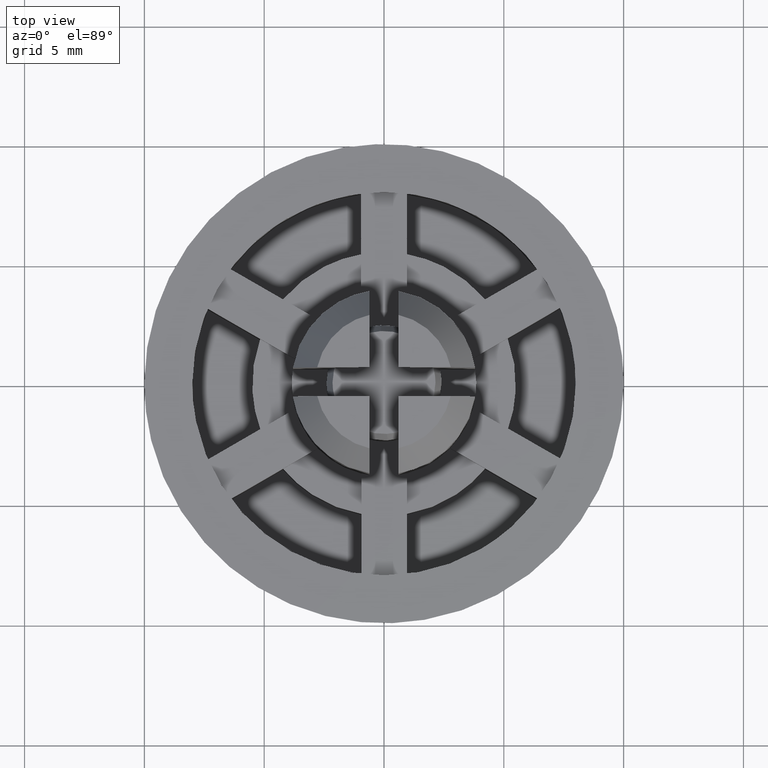
[diagram: clean part render]
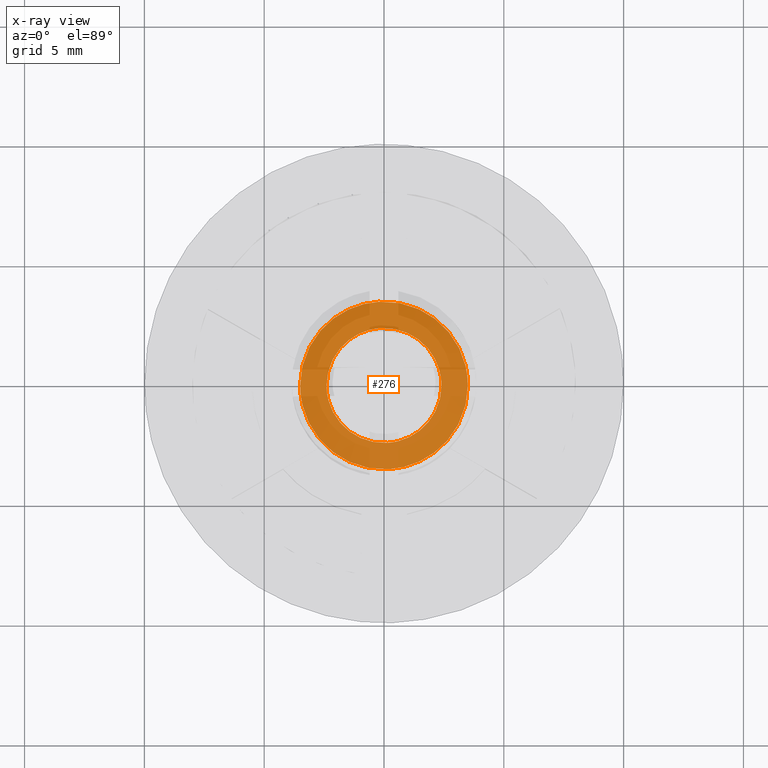
[diagram: x-ray — body ghosted, one internal face saturated and labeled with its STEP entity id]
A machine part, top view, then the same camera in x-ray: the body is ghosted and one INTERNAL B-rep face — a face not visible from any outside direction — is saturated and labeled: STEP entity #276.
In plain terms, the highlighted face is a freeform B-spline surface patch.
Its self-contained STEP definition (entity closure, byte-faithful):
#96=CARTESIAN_POINT('',(-0.213669888386887,3.493471794475623,-4.500020999999910));
#97=VERTEX_POINT('',#96);
#103=CARTESIAN_POINT('',(3.500000000000000,-3.612576E-016,-4.500020999999910));
#104=VERTEX_POINT('',#103);
#105=CARTESIAN_POINT('',(-0.213669888386888,3.493471794475624,-4.500020999999910));
#106=CARTESIAN_POINT('',(-0.106934671552526,3.499999999999999,-4.500020999999911));
#107=CARTESIAN_POINT('',(0.0,3.500000000000000,-4.500020999999910));
#108=CARTESIAN_POINT('',(3.500000000000000,3.500000000000000,-4.500020999999909));
#109=CARTESIAN_POINT('',(3.500000000000000,-3.612576E-016,-4.500020999999910));
#117=(BOUNDED_CURVE()B_SPLINE_CURVE(2,(#105,#106,#107,#108,#109),.UNSPECIFIED.,.F.,.U.)B_SPLINE_CURVE_WITH_KNOTS((3,2,3),(0.239332962241233,0.250000000000000,0.500000000000000),.UNSPECIFIED.)CURVE()GEOMETRIC_REPRESENTATION_ITEM()RATIONAL_B_SPLINE_CURVE((0.976072041671626,0.987502787902520,1.0,0.707106781186547,1.0))REPRESENTATION_ITEM(''));
#118=EDGE_CURVE('',#97,#104,#117,.T.);
#120=CARTESIAN_POINT('',(0.213669888386887,-3.493471794475624,-4.500020999999910));
#121=VERTEX_POINT('',#120);
#122=CARTESIAN_POINT('',(3.500000000000000,-3.612576E-016,-4.500020999999910));
#123=CARTESIAN_POINT('',(3.500000000000000,-3.292471234155875,-4.500020999999910));
#124=CARTESIAN_POINT('',(0.213669888386888,-3.493471794475624,-4.500020999999909));
#132=(BOUNDED_CURVE()B_SPLINE_CURVE(2,(#122,#123,#124),.UNSPECIFIED.,.F.,.U.)B_SPLINE_CURVE_WITH_KNOTS((3,3),(0.500000000000000,0.739332962241233),.UNSPECIFIED.)CURVE()GEOMETRIC_REPRESENTATION_ITEM()RATIONAL_B_SPLINE_CURVE((1.0,0.719603993284027,0.976072041671626))REPRESENTATION_ITEM(''));
#133=EDGE_CURVE('',#104,#121,#132,.T.);
#165=CARTESIAN_POINT('',(-3.500000000000000,-3.612576E-016,-4.500020999999910));
#166=VERTEX_POINT('',#165);
#167=CARTESIAN_POINT('',(0.213669888386888,-3.493471794475624,-4.500020999999909));
#168=CARTESIAN_POINT('',(0.106934671552527,-3.500000000000000,-4.500020999999909));
#169=CARTESIAN_POINT('',(0.0,-3.500000000000000,-4.500020999999910));
#170=CARTESIAN_POINT('',(-3.500000000000000,-3.500000000000001,-4.500020999999909));
#171=CARTESIAN_POINT('',(-3.500000000000000,-3.612576E-016,-4.500020999999910));
#179=(BOUNDED_CURVE()B_SPLINE_CURVE(2,(#167,#168,#169,#170,#171),.UNSPECIFIED.,.F.,.U.)B_SPLINE_CURVE_WITH_KNOTS((3,2,3),(0.739332962241233,0.750000000000000,1.0),.UNSPECIFIED.)CURVE()GEOMETRIC_REPRESENTATION_ITEM()RATIONAL_B_SPLINE_CURVE((0.976072041671626,0.987502787902520,1.0,0.707106781186547,1.0))REPRESENTATION_ITEM(''));
#180=EDGE_CURVE('',#121,#166,#179,.T.);
#182=CARTESIAN_POINT('',(-3.500000000000000,-3.612576E-016,-4.500020999999910));
#183=CARTESIAN_POINT('',(-3.500000000000000,3.292471234155874,-4.500020999999910));
#184=CARTESIAN_POINT('',(-0.213669888386888,3.493471794475624,-4.500020999999910));
#192=(BOUNDED_CURVE()B_SPLINE_CURVE(2,(#182,#183,#184),.UNSPECIFIED.,.F.,.U.)B_SPLINE_CURVE_WITH_KNOTS((3,3),(0.0,0.239332962241233),.UNSPECIFIED.)CURVE()GEOMETRIC_REPRESENTATION_ITEM()RATIONAL_B_SPLINE_CURVE((1.0,0.719603993284027,0.976072041671626))REPRESENTATION_ITEM(''));
#193=EDGE_CURVE('',#166,#97,#192,.T.);
#199=CARTESIAN_POINT('',(3.849649986432642,-3.849563855582168,-4.500020999999910));
#200=CARTESIAN_POINT('',(-3.849650174187272,-3.849563855582168,-4.500020999999910));
#201=CARTESIAN_POINT('',(3.849649986432642,3.849563730412414,-4.500020999999910));
#202=CARTESIAN_POINT('',(-3.849650174187273,3.849563730412414,-4.500020999999910));
#203=B_SPLINE_SURFACE_WITH_KNOTS('',1,1,((#199,#201),(#200,#202)),.UNSPECIFIED.,.F.,.F.,.U.,(2,2),(2,2),(0.0,7.699300160619915),(0.0,7.699127585994583),.UNSPECIFIED.);
#204=ORIENTED_EDGE('',*,*,#180,.F.);
#205=ORIENTED_EDGE('',*,*,#133,.F.);
#206=ORIENTED_EDGE('',*,*,#118,.F.);
#207=ORIENTED_EDGE('',*,*,#193,.F.);
#208=EDGE_LOOP('',(#204,#205,#206,#207));
#209=FACE_OUTER_BOUND('',#208,.T.);
#210=CARTESIAN_POINT('',(2.400000000000000,-3.612576E-016,-4.500020999999910));
#211=VERTEX_POINT('',#210);
#212=CARTESIAN_POINT('',(0.146516494908146,-2.395523516210983,-4.500020999999910));
#213=VERTEX_POINT('',#212);
#214=CARTESIAN_POINT('',(2.400000000000000,-3.612576E-016,-4.500020999999910));
#215=CARTESIAN_POINT('',(2.400000000000000,-2.257694560550546,-4.500020999999910));
#216=CARTESIAN_POINT('',(0.146516494908145,-2.395523516210984,-4.500020999999910));
#224=(BOUNDED_CURVE()B_SPLINE_CURVE(2,(#214,#215,#216),.UNSPECIFIED.,.F.,.U.)B_SPLINE_CURVE_WITH_KNOTS((3,3),(0.500000000000000,0.739332962240204),.UNSPECIFIED.)CURVE()GEOMETRIC_REPRESENTATION_ITEM()RATIONAL_B_SPLINE_CURVE((1.0,0.719603993285232,0.976072041669421))REPRESENTATION_ITEM(''));
#225=EDGE_CURVE('',#211,#213,#224,.T.);
#226=ORIENTED_EDGE('',*,*,#225,.T.);
#227=CARTESIAN_POINT('',(-2.400000000000000,-3.612576E-016,-4.500020999999910));
#228=VERTEX_POINT('',#227);
#229=CARTESIAN_POINT('',(0.146516494908145,-2.395523516210984,-4.500020999999910));
#230=CARTESIAN_POINT('',(0.073326631928892,-2.400000000000000,-4.500020999999910));
#231=CARTESIAN_POINT('',(0.0,-2.400000000000000,-4.500020999999910));
#232=CARTESIAN_POINT('',(-2.400000000000000,-2.400000000000000,-4.500020999999909));
#233=CARTESIAN_POINT('',(-2.400000000000000,-3.612576E-016,-4.500020999999910));
#241=(BOUNDED_CURVE()B_SPLINE_CURVE(2,(#229,#230,#231,#232,#233),.UNSPECIFIED.,.F.,.U.)B_SPLINE_CURVE_WITH_KNOTS((3,2,3),(0.739332962240204,0.750000000000000,1.0),.UNSPECIFIED.)CURVE()GEOMETRIC_REPRESENTATION_ITEM()RATIONAL_B_SPLINE_CURVE((0.976072041669421,0.987502787901315,1.0,0.707106781186547,1.0))REPRESENTATION_ITEM(''));
#242=EDGE_CURVE('',#213,#228,#241,.T.);
#243=ORIENTED_EDGE('',*,*,#242,.T.);
#244=CARTESIAN_POINT('',(-0.146516494908146,2.395523516210982,-4.500020999999910));
#245=VERTEX_POINT('',#244);
#246=CARTESIAN_POINT('',(-2.400000000000000,-3.612576E-016,-4.500020999999910));
#247=CARTESIAN_POINT('',(-2.400000000000000,2.257694560550544,-4.500020999999909));
#248=CARTESIAN_POINT('',(-0.146516494908146,2.395523516210982,-4.500020999999911));
#256=(BOUNDED_CURVE()B_SPLINE_CURVE(2,(#246,#247,#248),.UNSPECIFIED.,.F.,.U.)B_SPLINE_CURVE_WITH_KNOTS((3,3),(0.0,0.239332962240204),.UNSPECIFIED.)CURVE()GEOMETRIC_REPRESENTATION_ITEM()RATIONAL_B_SPLINE_CURVE((1.0,0.719603993285232,0.976072041669421))REPRESENTATION_ITEM(''));
#257=EDGE_CURVE('',#228,#245,#256,.T.);
#258=ORIENTED_EDGE('',*,*,#257,.T.);
#259=CARTESIAN_POINT('',(-0.146516494908146,2.395523516210982,-4.500020999999911));
#260=CARTESIAN_POINT('',(-0.073326631928892,2.400000000000000,-4.500020999999910));
#261=CARTESIAN_POINT('',(0.0,2.400000000000000,-4.500020999999910));
#262=CARTESIAN_POINT('',(2.400000000000000,2.400000000000000,-4.500020999999909));
#263=CARTESIAN_POINT('',(2.400000000000000,-3.612576E-016,-4.500020999999910));
#271=(BOUNDED_CURVE()B_SPLINE_CURVE(2,(#259,#260,#261,#262,#263),.UNSPECIFIED.,.F.,.U.)B_SPLINE_CURVE_WITH_KNOTS((3,2,3),(0.239332962240204,0.250000000000000,0.500000000000000),.UNSPECIFIED.)CURVE()GEOMETRIC_REPRESENTATION_ITEM()RATIONAL_B_SPLINE_CURVE((0.976072041669421,0.987502787901315,1.0,0.707106781186547,1.0))REPRESENTATION_ITEM(''));
#272=EDGE_CURVE('',#245,#211,#271,.T.);
#273=ORIENTED_EDGE('',*,*,#272,.T.);
#274=EDGE_LOOP('',(#226,#243,#258,#273));
#275=FACE_BOUND('',#274,.T.);
#276=ADVANCED_FACE('',(#209,#275),#203,.F.);